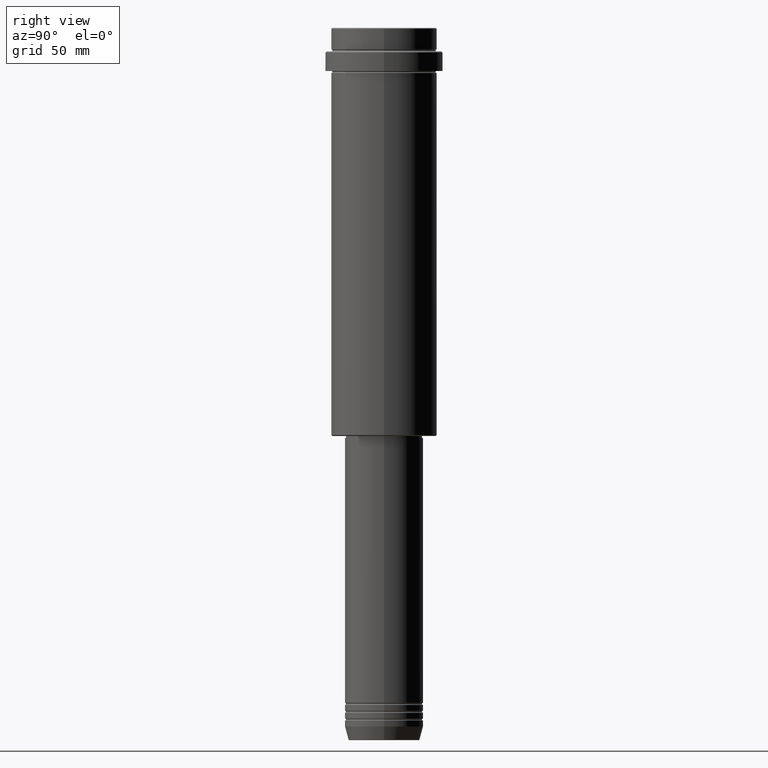
[diagram: clean part render]
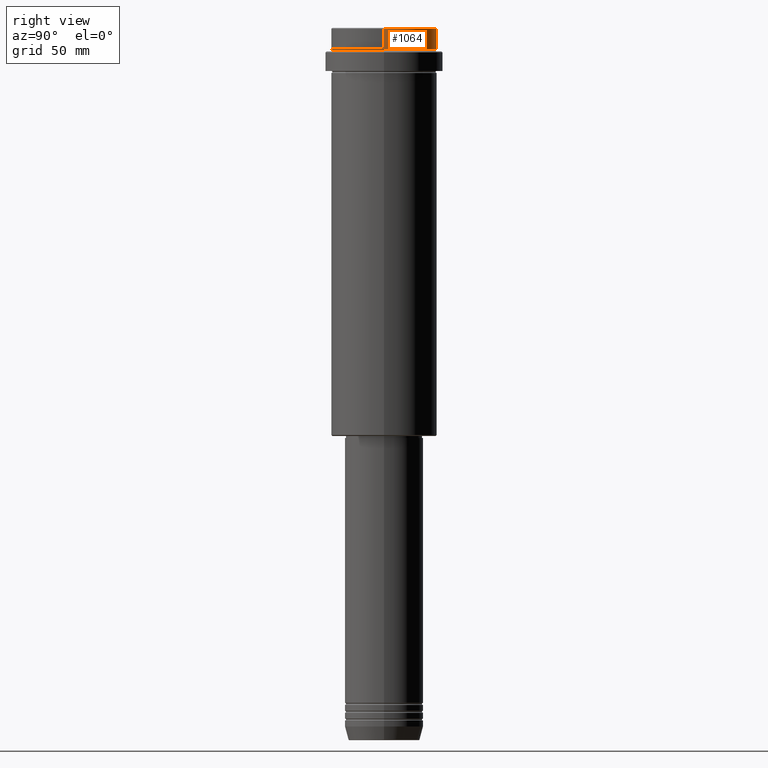
[diagram: same view with one face highlighted and labeled with its STEP entity id]
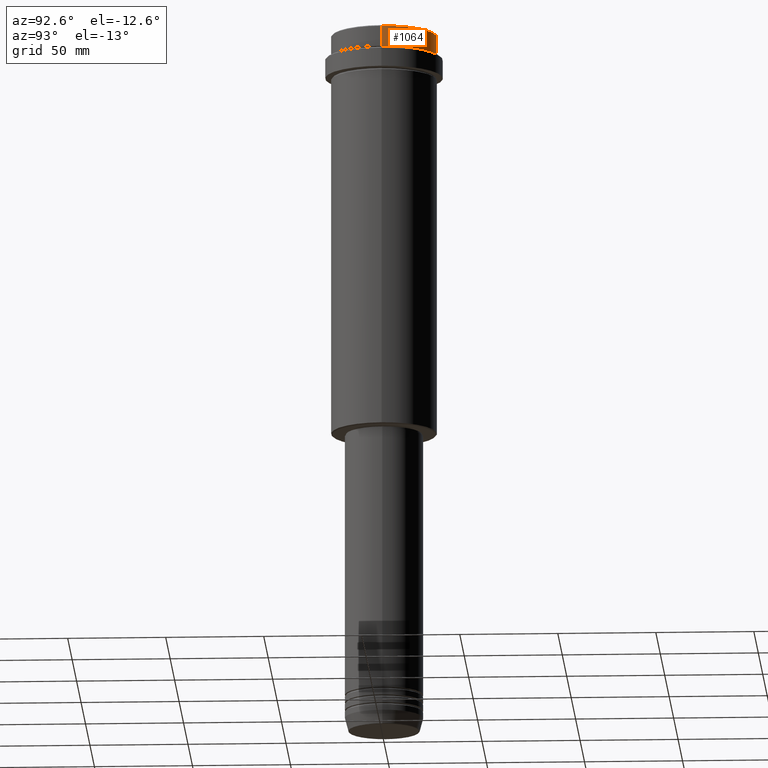
[diagram: same view with one face highlighted and labeled with its STEP entity id]
A machine part, right view. The second image highlights one B-rep face of the part: STEP entity #1064.
A second angle (auxiliary view) of the same face is appended — the face is thin or edge-on in the first view.
In plain terms, the highlighted cylindrical surface (partial cylindrical patch) has radius 27 mm, axis along (-0, -0, 1).
Its self-contained STEP definition (entity closure, byte-faithful):
#14 = FACE_OUTER_BOUND ( 'NONE', #1034, .T. ) ;
#49 = DIRECTION ( 'NONE',  ( 1.000000000000000000, 0.000000000000000000, 0.000000000000000000 ) ) ;
#76 = VERTEX_POINT ( 'NONE', #1256 ) ;
#98 = EDGE_CURVE ( 'NONE', #667, #1206, #279, .T. ) ;
#111 = VECTOR ( 'NONE', #1239, 1000.000000000000000 ) ;
#145 = DIRECTION ( 'NONE',  ( 1.000000000000000000, 0.000000000000000000, 0.000000000000000000 ) ) ;
#203 = LINE ( 'NONE', #1068, #1137 ) ;
#279 = CIRCLE ( 'NONE', #1414, 26.99999999999999645 ) ;
#286 = AXIS2_PLACEMENT_3D ( 'NONE', #668, #1015, #470 ) ;
#290 = CARTESIAN_POINT ( 'NONE',  ( 26.99999999999999645, 0.000000000000000000, -0.5000000000000316414 ) ) ;
#299 = EDGE_CURVE ( 'NONE', #1237, #76, #808, .T. ) ;
#322 = CARTESIAN_POINT ( 'NONE',  ( 26.99999999999999645, 0.000000000000000000, -11.00000000000000178 ) ) ;
#325 = AXIS2_PLACEMENT_3D ( 'NONE', #489, #395, #145 ) ;
#360 = CARTESIAN_POINT ( 'NONE',  ( -26.99999999999999645, 3.306546357697853339E-15, -0.5000000000000316414 ) ) ;
#395 = DIRECTION ( 'NONE',  ( -0.000000000000000000, -0.000000000000000000, 1.000000000000000000 ) ) ;
#414 = DIRECTION ( 'NONE',  ( 0.000000000000000000, 0.000000000000000000, -1.000000000000000000 ) ) ;
#431 = ORIENTED_EDGE ( 'NONE', *, *, #299, .T. ) ;
#470 = DIRECTION ( 'NONE',  ( 1.000000000000000000, 0.000000000000000000, 0.000000000000000000 ) ) ;
#489 = CARTESIAN_POINT ( 'NONE',  ( 0.000000000000000000, 0.000000000000000000, -11.00000000000000178 ) ) ;
#667 = VERTEX_POINT ( 'NONE', #360 ) ;
#668 = CARTESIAN_POINT ( 'NONE',  ( 0.000000000000000000, 0.000000000000000000, 0.000000000000000000 ) ) ;
#767 = EDGE_CURVE ( 'NONE', #1237, #1206, #836, .T. ) ;
#774 = CYLINDRICAL_SURFACE ( 'NONE', #286, 26.99999999999999645 ) ;
#775 = ORIENTED_EDGE ( 'NONE', *, *, #98, .T. ) ;
#808 = CIRCLE ( 'NONE', #325, 26.99999999999999645 ) ;
#822 = CARTESIAN_POINT ( 'NONE',  ( 26.99999999999999645, 0.000000000000000000, 0.000000000000000000 ) ) ;
#836 = LINE ( 'NONE', #822, #111 ) ;
#845 = ORIENTED_EDGE ( 'NONE', *, *, #767, .F. ) ;
#884 = ORIENTED_EDGE ( 'NONE', *, *, #960, .T. ) ;
#960 = EDGE_CURVE ( 'NONE', #76, #667, #203, .T. ) ;
#964 = DIRECTION ( 'NONE',  ( -0.000000000000000000, -0.000000000000000000, 1.000000000000000000 ) ) ;
#1015 = DIRECTION ( 'NONE',  ( -0.000000000000000000, -0.000000000000000000, 1.000000000000000000 ) ) ;
#1028 = CARTESIAN_POINT ( 'NONE',  ( 0.000000000000000000, 0.000000000000000000, -0.5000000000000316414 ) ) ;
#1034 = EDGE_LOOP ( 'NONE', ( #431, #884, #775, #845 ) ) ;
#1064 = ADVANCED_FACE ( 'NONE', ( #14 ), #774, .T. ) ;
#1068 = CARTESIAN_POINT ( 'NONE',  ( -26.99999999999999645, 3.306546357697853339E-15, 0.000000000000000000 ) ) ;
#1137 = VECTOR ( 'NONE', #964, 1000.000000000000000 ) ;
#1206 = VERTEX_POINT ( 'NONE', #290 ) ;
#1237 = VERTEX_POINT ( 'NONE', #322 ) ;
#1239 = DIRECTION ( 'NONE',  ( -0.000000000000000000, -0.000000000000000000, 1.000000000000000000 ) ) ;
#1256 = CARTESIAN_POINT ( 'NONE',  ( -26.99999999999999645, 3.306546357697853339E-15, -11.00000000000000178 ) ) ;
#1414 = AXIS2_PLACEMENT_3D ( 'NONE', #1028, #414, #49 ) ;